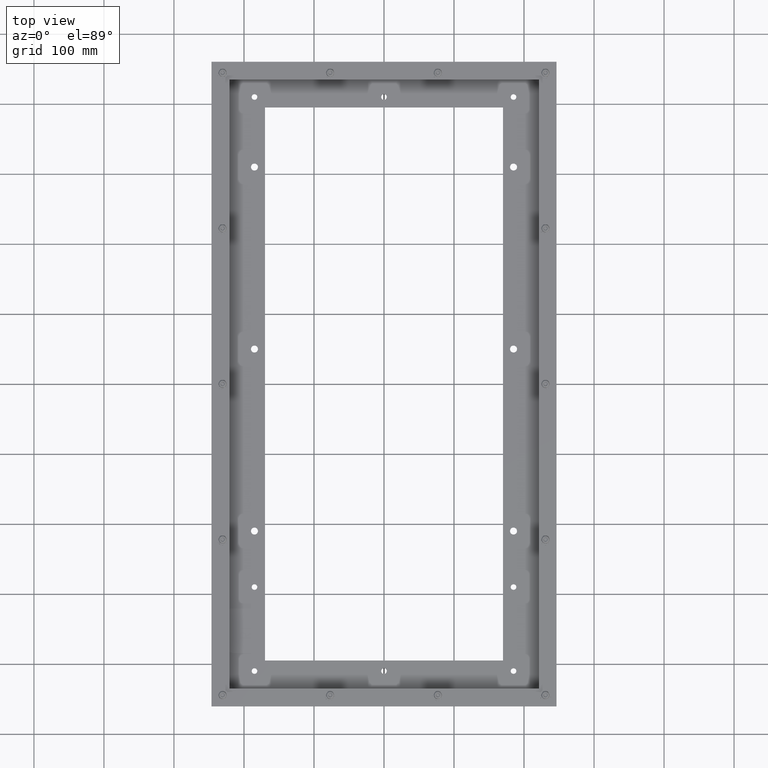
[diagram: clean part render]
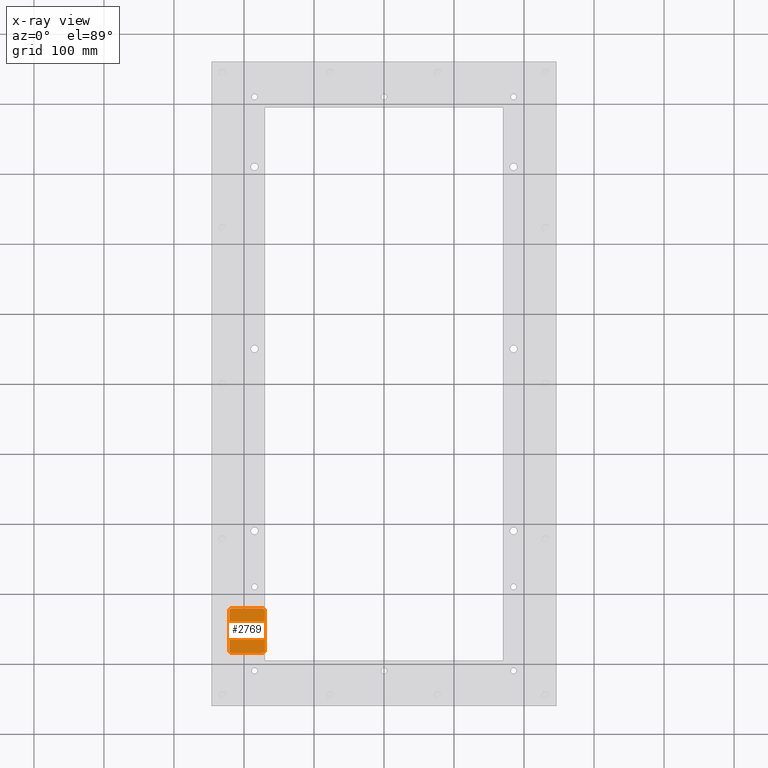
[diagram: x-ray — body ghosted, one internal face saturated and labeled with its STEP entity id]
A machine part, top view, then the same camera in x-ray: the body is ghosted and one INTERNAL B-rep face — a face not visible from any outside direction — is saturated and labeled: STEP entity #2769.
In plain terms, the highlighted planar face has unit normal (0, -0, 1).
Its self-contained STEP definition (entity closure, byte-faithful):
#457=CIRCLE('',#3068,0.125);
#458=CIRCLE('',#3071,0.125);
#459=CIRCLE('',#3074,0.125);
#460=CIRCLE('',#3077,0.125);
#670=FACE_OUTER_BOUND('',#983,.T.);
#983=EDGE_LOOP('',(#2422,#2423,#2424,#2425,#2426,#2427,#2428,#2429));
#1117=LINE('',#4673,#1258);
#1120=LINE('',#4681,#1261);
#1123=LINE('',#4689,#1264);
#1125=LINE('',#4695,#1266);
#1258=VECTOR('',#3815,2.25);
#1261=VECTOR('',#3824,1.75);
#1264=VECTOR('',#3833,2.25);
#1266=VECTOR('',#3841,1.75);
#1499=VERTEX_POINT('',#4665);
#1500=VERTEX_POINT('',#4667);
#1501=VERTEX_POINT('',#4671);
#1502=VERTEX_POINT('',#4675);
#1503=VERTEX_POINT('',#4679);
#1504=VERTEX_POINT('',#4683);
#1505=VERTEX_POINT('',#4687);
#1506=VERTEX_POINT('',#4691);
#1801=EDGE_CURVE('',#1499,#1500,#457,.T.);
#1804=EDGE_CURVE('',#1501,#1499,#1117,.T.);
#1806=EDGE_CURVE('',#1502,#1501,#458,.T.);
#1808=EDGE_CURVE('',#1503,#1502,#1120,.T.);
#1810=EDGE_CURVE('',#1504,#1503,#459,.T.);
#1812=EDGE_CURVE('',#1505,#1504,#1123,.T.);
#1814=EDGE_CURVE('',#1506,#1505,#460,.T.);
#1815=EDGE_CURVE('',#1500,#1506,#1125,.T.);
#2422=ORIENTED_EDGE('',*,*,#1815,.F.);
#2423=ORIENTED_EDGE('',*,*,#1801,.F.);
#2424=ORIENTED_EDGE('',*,*,#1804,.F.);
#2425=ORIENTED_EDGE('',*,*,#1806,.F.);
#2426=ORIENTED_EDGE('',*,*,#1808,.F.);
#2427=ORIENTED_EDGE('',*,*,#1810,.F.);
#2428=ORIENTED_EDGE('',*,*,#1812,.F.);
#2429=ORIENTED_EDGE('',*,*,#1814,.F.);
#2508=PLANE('',#3079);
#2769=ADVANCED_FACE('',(#670),#2508,.F.);
#3068=AXIS2_PLACEMENT_3D('',#4668,#3809,#3810);
#3071=AXIS2_PLACEMENT_3D('',#4677,#3819,#3820);
#3074=AXIS2_PLACEMENT_3D('',#4685,#3828,#3829);
#3077=AXIS2_PLACEMENT_3D('',#4693,#3837,#3838);
#3079=AXIS2_PLACEMENT_3D('',#4696,#3842,#3843);
#3809=DIRECTION('center_axis',(0.,0.,1.));
#3810=DIRECTION('ref_axis',(-1.3987061727561E-15,1.,0.));
#3815=DIRECTION('',(-1.,2.3311769545935E-16,0.));
#3819=DIRECTION('center_axis',(0.,0.,1.));
#3820=DIRECTION('ref_axis',(1.,-1.39870617275611E-15,0.));
#3824=DIRECTION('',(3.99630335073172E-16,1.,0.));
#3828=DIRECTION('center_axis',(0.,0.,1.));
#3829=DIRECTION('ref_axis',(0.,-1.,0.));
#3833=DIRECTION('',(1.,-3.10823593945801E-16,0.));
#3837=DIRECTION('center_axis',(0.,0.,1.));
#3838=DIRECTION('ref_axis',(-1.,1.39870617275611E-15,0.));
#3841=DIRECTION('',(-9.99075837682931E-17,-1.,0.));
#3842=DIRECTION('center_axis',(0.,0.,1.));
#3843=DIRECTION('ref_axis',(1.,0.,0.));
#4665=CARTESIAN_POINT('',(-1.125,1.,0.));
#4667=CARTESIAN_POINT('',(-1.25,0.875,0.));
#4668=CARTESIAN_POINT('Origin',(-1.125,0.875,0.));
#4671=CARTESIAN_POINT('',(1.125,0.999999999999999,0.));
#4673=CARTESIAN_POINT('',(1.125,0.999999999999999,0.));
#4675=CARTESIAN_POINT('',(1.25,0.874999999999999,0.));
#4677=CARTESIAN_POINT('Origin',(1.125,0.875,0.));
#4679=CARTESIAN_POINT('',(1.25,-0.875000000000001,0.));
#4681=CARTESIAN_POINT('',(1.25,-0.875000000000001,0.));
#4683=CARTESIAN_POINT('',(1.125,-1.,0.));
#4685=CARTESIAN_POINT('Origin',(1.125,-0.875000000000001,0.));
#4687=CARTESIAN_POINT('',(-1.125,-1.,0.));
#4689=CARTESIAN_POINT('',(-1.125,-1.,0.));
#4691=CARTESIAN_POINT('',(-1.25,-0.875,0.));
#4693=CARTESIAN_POINT('Origin',(-1.125,-0.875,0.));
#4695=CARTESIAN_POINT('',(-1.25,0.875,0.));
#4696=CARTESIAN_POINT('Origin',(2.29475231467798E-16,-2.26743383474134E-16,
0.));